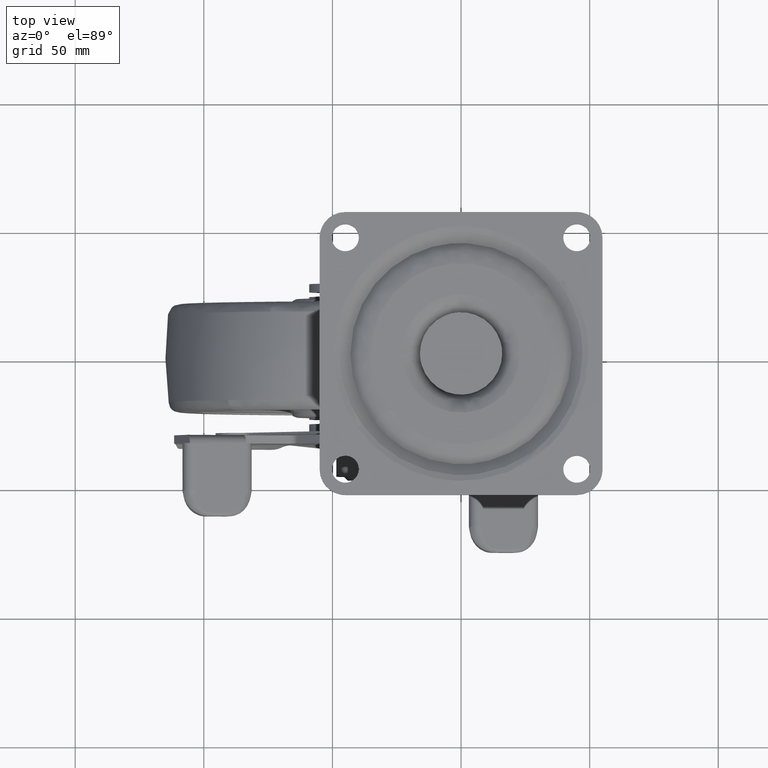
[diagram: clean part render]
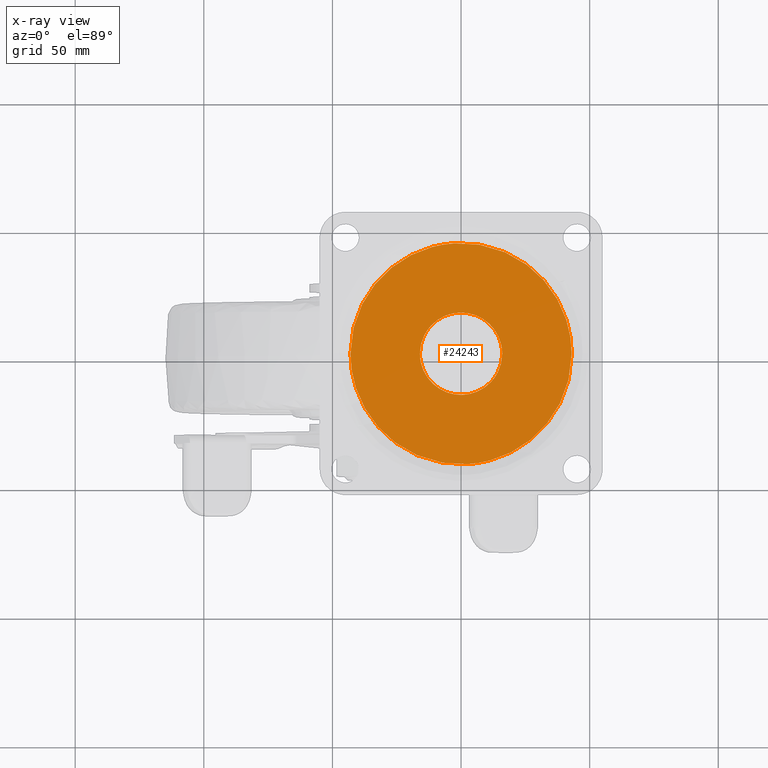
[diagram: x-ray — body ghosted, one internal face saturated and labeled with its STEP entity id]
A machine part, top view, then the same camera in x-ray: the body is ghosted and one INTERNAL B-rep face — a face not visible from any outside direction — is saturated and labeled: STEP entity #24243.
In plain terms, the highlighted face is a freeform B-spline surface patch.
Its self-contained STEP definition (entity closure, byte-faithful):
#24106=CARTESIAN_POINT('',(47.295699833315318,-47.294641654295219,-7.700000000000000));
#24107=CARTESIAN_POINT('',(-47.295702140015067,-47.294641654295233,-7.700000000000000));
#24108=CARTESIAN_POINT('',(47.295699833315318,47.294640116495387,-7.700000000000000));
#24109=CARTESIAN_POINT('',(-47.295702140015067,47.294640116495387,-7.700000000000000));
#24110=B_SPLINE_SURFACE_WITH_KNOTS('',1,1,((#24106,#24108),(#24107,#24109)),.UNSPECIFIED.,.F.,.F.,.U.,(2,2),(2,2),(0.0,94.591401973330392),(0.0,94.589281770790620),.UNSPECIFIED.);
#24111=CARTESIAN_POINT('',(2.625067322900707,-42.919797547866438,-7.699999999998995));
#24112=VERTEX_POINT('',#24111);
#24113=CARTESIAN_POINT('',(-43.0,0.0,-7.700000000000000));
#24114=VERTEX_POINT('',#24113);
#24115=CARTESIAN_POINT('',(2.625067322900707,-42.919797547866445,-7.699999999998995));
#24116=CARTESIAN_POINT('',(1.313758855423605,-42.999999999995453,-7.699999999999008));
#24117=CARTESIAN_POINT('',(-2.667416E-013,-42.999999999995516,-7.699999999999024));
#24118=CARTESIAN_POINT('',(-43.000000000000135,-42.999999999997826,-7.699999999999527));
#24119=CARTESIAN_POINT('',(-43.0,0.0,-7.700000000000000));
#24127=(BOUNDED_CURVE()B_SPLINE_CURVE(2,(#24115,#24116,#24117,#24118,#24119),.UNSPECIFIED.,.F.,.U.)B_SPLINE_CURVE_WITH_KNOTS((3,2,3),(0.739333042152172,0.750000000000000,1.0),.UNSPECIFIED.)CURVE()GEOMETRIC_REPRESENTATION_ITEM()RATIONAL_B_SPLINE_CURVE((0.976072212936040,0.987502881524009,1.0,0.707106781186548,1.0))REPRESENTATION_ITEM(''));
#24128=EDGE_CURVE('',#24112,#24114,#24127,.T.);
#24129=ORIENTED_EDGE('',*,*,#24128,.F.);
#24130=CARTESIAN_POINT('',(43.0,0.0,-7.700000000000000));
#24131=VERTEX_POINT('',#24130);
#24132=CARTESIAN_POINT('',(43.0,0.0,-7.700000000000000));
#24133=CARTESIAN_POINT('',(42.999999999999858,-40.450379645401568,-7.699999999999497));
#24134=CARTESIAN_POINT('',(2.625067322900707,-42.919797547866445,-7.699999999998995));
#24142=(BOUNDED_CURVE()B_SPLINE_CURVE(2,(#24132,#24133,#24134),.UNSPECIFIED.,.F.,.U.)B_SPLINE_CURVE_WITH_KNOTS((3,3),(0.500000000000000,0.739333042152172),.UNSPECIFIED.)CURVE()GEOMETRIC_REPRESENTATION_ITEM()RATIONAL_B_SPLINE_CURVE((1.0,0.719603899662538,0.976072212936040))REPRESENTATION_ITEM(''));
#24143=EDGE_CURVE('',#24131,#24112,#24142,.T.);
#24144=ORIENTED_EDGE('',*,*,#24143,.F.);
#24145=CARTESIAN_POINT('',(-2.625067322900715,42.919797547866430,-7.699999999998994));
#24146=VERTEX_POINT('',#24145);
#24147=CARTESIAN_POINT('',(-2.625067322900715,42.919797547866430,-7.699999999998994));
#24148=CARTESIAN_POINT('',(-1.313758855423603,42.999999999995445,-7.699999999999008));
#24149=CARTESIAN_POINT('',(2.783765E-013,42.999999999995516,-7.699999999999024));
#24150=CARTESIAN_POINT('',(43.000000000000135,42.999999999997826,-7.699999999999527));
#24151=CARTESIAN_POINT('',(43.0,0.0,-7.700000000000000));
#24159=(BOUNDED_CURVE()B_SPLINE_CURVE(2,(#24147,#24148,#24149,#24150,#24151),.UNSPECIFIED.,.F.,.U.)B_SPLINE_CURVE_WITH_KNOTS((3,2,3),(0.239333042152172,0.250000000000000,0.500000000000000),.UNSPECIFIED.)CURVE()GEOMETRIC_REPRESENTATION_ITEM()RATIONAL_B_SPLINE_CURVE((0.976072212936040,0.987502881524009,1.0,0.707106781186548,1.0))REPRESENTATION_ITEM(''));
#24160=EDGE_CURVE('',#24146,#24131,#24159,.T.);
#24161=ORIENTED_EDGE('',*,*,#24160,.F.);
#24162=CARTESIAN_POINT('',(-43.0,0.0,-7.700000000000000));
#24163=CARTESIAN_POINT('',(-42.999999999999865,40.450379645401547,-7.699999999999497));
#24164=CARTESIAN_POINT('',(-2.625067322900715,42.919797547866430,-7.699999999998994));
#24172=(BOUNDED_CURVE()B_SPLINE_CURVE(2,(#24162,#24163,#24164),.UNSPECIFIED.,.F.,.U.)B_SPLINE_CURVE_WITH_KNOTS((3,3),(0.0,0.239333042152172),.UNSPECIFIED.)CURVE()GEOMETRIC_REPRESENTATION_ITEM()RATIONAL_B_SPLINE_CURVE((1.0,0.719603899662538,0.976072212936040))REPRESENTATION_ITEM(''));
#24173=EDGE_CURVE('',#24114,#24146,#24172,.T.);
#24174=ORIENTED_EDGE('',*,*,#24173,.F.);
#24175=EDGE_LOOP('',(#24129,#24144,#24161,#24174));
#24176=FACE_OUTER_BOUND('',#24175,.T.);
#24177=CARTESIAN_POINT('',(16.0,0.0,-7.700000000000000));
#24178=VERTEX_POINT('',#24177);
#24179=CARTESIAN_POINT('',(11.605991252896031,-11.013671823588041,-7.700000000000000));
#24180=VERTEX_POINT('',#24179);
#24181=CARTESIAN_POINT('',(16.0,0.0,-7.700000000000000));
#24182=CARTESIAN_POINT('',(16.000000000000007,-6.383351626937975,-7.700000000000001));
#24183=CARTESIAN_POINT('',(11.605991252896116,-11.013671823588117,-7.700000000000001));
#24191=(BOUNDED_CURVE()B_SPLINE_CURVE(2,(#24181,#24182,#24183),.UNSPECIFIED.,.F.,.U.)B_SPLINE_CURVE_WITH_KNOTS((3,3),(0.500000000000000,0.621049508617077),.UNSPECIFIED.)CURVE()GEOMETRIC_REPRESENTATION_ITEM()RATIONAL_B_SPLINE_CURVE((1.0,0.858181679141430,0.853699662705491))REPRESENTATION_ITEM(''));
#24192=EDGE_CURVE('',#24178,#24180,#24191,.T.);
#24193=ORIENTED_EDGE('',*,*,#24192,.T.);
#24194=CARTESIAN_POINT('',(-16.0,0.0,-7.700000000000000));
#24195=VERTEX_POINT('',#24194);
#24196=CARTESIAN_POINT('',(11.605991252896029,-11.013671823588041,-7.700000000000001));
#24197=CARTESIAN_POINT('',(6.874143628419657,-16.000000000000007,-7.700000000000001));
#24198=CARTESIAN_POINT('',(0.0,-16.0,-7.700000000000000));
#24199=CARTESIAN_POINT('',(-15.999999999999998,-15.999999999999998,-7.700000000000000));
#24200=CARTESIAN_POINT('',(-16.0,0.0,-7.700000000000000));
#24208=(BOUNDED_CURVE()B_SPLINE_CURVE(2,(#24196,#24197,#24198,#24199,#24200),.UNSPECIFIED.,.F.,.U.)B_SPLINE_CURVE_WITH_KNOTS((3,2,3),(0.621049508617077,0.750000000000000,1.0),.UNSPECIFIED.)CURVE()GEOMETRIC_REPRESENTATION_ITEM()RATIONAL_B_SPLINE_CURVE((0.853699662705491,0.848925102045117,1.0,0.707106781186548,1.0))REPRESENTATION_ITEM(''));
#24209=EDGE_CURVE('',#24180,#24195,#24208,.T.);
#24210=ORIENTED_EDGE('',*,*,#24209,.T.);
#24211=CARTESIAN_POINT('',(-11.605991252896031,11.013671823588041,-7.700000000000000));
#24212=VERTEX_POINT('',#24211);
#24213=CARTESIAN_POINT('',(-16.0,0.0,-7.700000000000000));
#24214=CARTESIAN_POINT('',(-16.000000000000007,6.383351626937977,-7.700000000000001));
#24215=CARTESIAN_POINT('',(-11.605991252896112,11.013671823588123,-7.700000000000001));
#24223=(BOUNDED_CURVE()B_SPLINE_CURVE(2,(#24213,#24214,#24215),.UNSPECIFIED.,.F.,.U.)B_SPLINE_CURVE_WITH_KNOTS((3,3),(0.0,0.121049508617077),.UNSPECIFIED.)CURVE()GEOMETRIC_REPRESENTATION_ITEM()RATIONAL_B_SPLINE_CURVE((1.0,0.858181679141430,0.853699662705491))REPRESENTATION_ITEM(''));
#24224=EDGE_CURVE('',#24195,#24212,#24223,.T.);
#24225=ORIENTED_EDGE('',*,*,#24224,.T.);
#24226=CARTESIAN_POINT('',(-11.605991252896029,11.013671823588041,-7.700000000000001));
#24227=CARTESIAN_POINT('',(-6.874143628419653,16.000000000000004,-7.699999999999998));
#24228=CARTESIAN_POINT('',(0.0,16.0,-7.700000000000000));
#24229=CARTESIAN_POINT('',(15.999999999999998,15.999999999999998,-7.700000000000000));
#24230=CARTESIAN_POINT('',(16.0,0.0,-7.700000000000000));
#24238=(BOUNDED_CURVE()B_SPLINE_CURVE(2,(#24226,#24227,#24228,#24229,#24230),.UNSPECIFIED.,.F.,.U.)B_SPLINE_CURVE_WITH_KNOTS((3,2,3),(0.121049508617077,0.250000000000000,0.500000000000000),.UNSPECIFIED.)CURVE()GEOMETRIC_REPRESENTATION_ITEM()RATIONAL_B_SPLINE_CURVE((0.853699662705491,0.848925102045117,1.0,0.707106781186548,1.0))REPRESENTATION_ITEM(''));
#24239=EDGE_CURVE('',#24212,#24178,#24238,.T.);
#24240=ORIENTED_EDGE('',*,*,#24239,.T.);
#24241=EDGE_LOOP('',(#24193,#24210,#24225,#24240));
#24242=FACE_BOUND('',#24241,.T.);
#24243=ADVANCED_FACE('',(#24176,#24242),#24110,.F.);